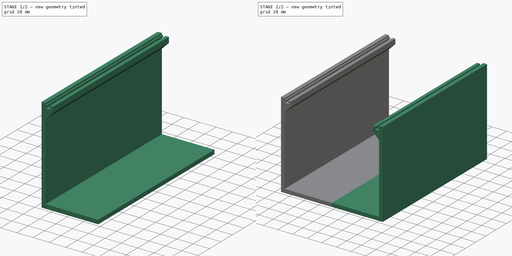
[diagram: build sequence overview — one tinted view per stage of 2, left to right]
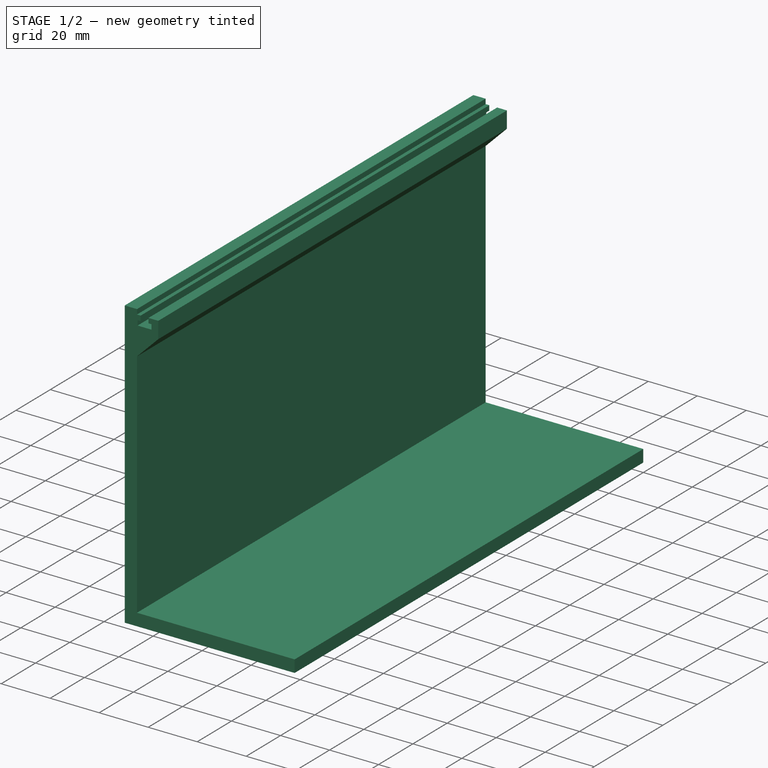
[diagram: stage 1 of 2 — iso view after this stage's code; geometry added in this stage tinted green]
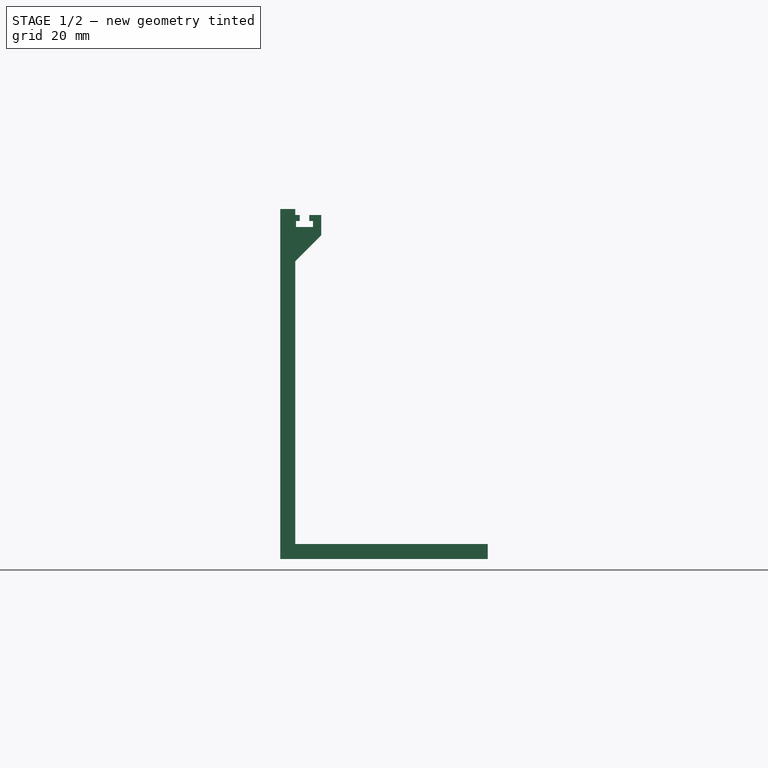
[diagram: stage 1 of 2 — front view after this stage's code; geometry added in this stage tinted green]
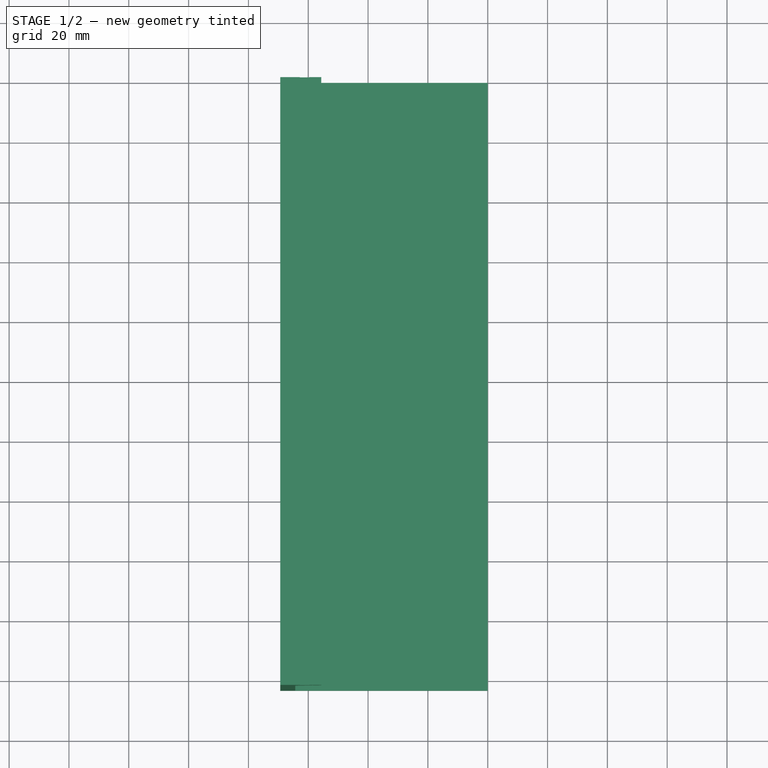
[diagram: stage 1 of 2 — top view after this stage's code; geometry added in this stage tinted green]
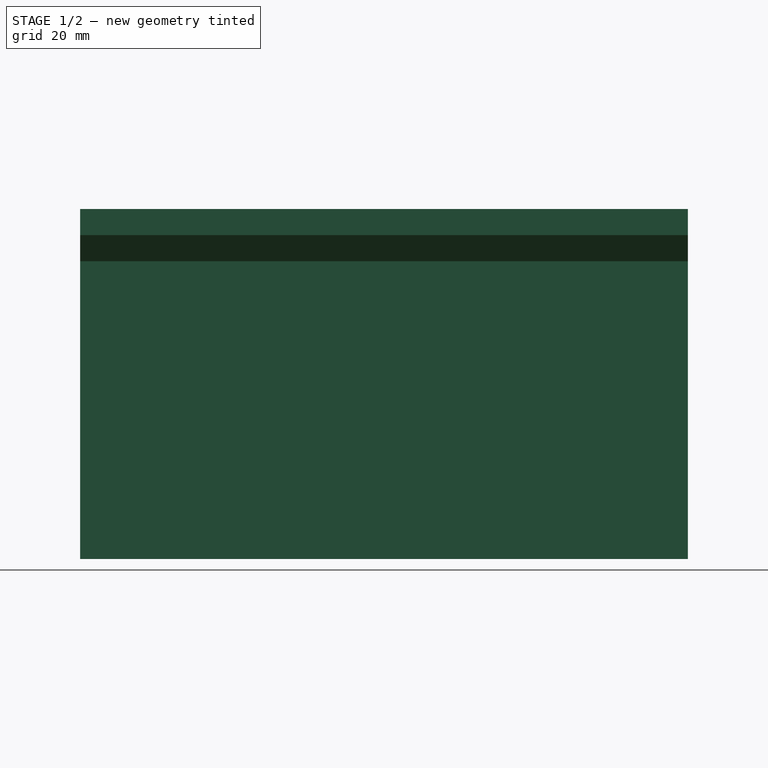
[diagram: stage 1 of 2 — right view after this stage's code; geometry added in this stage tinted green]
FCSTD DOCUMENT  (FreeCAD 0.21R33771 (Git))
Label: Eurorack
License: All rights reserved
LicenseURL: http://en.wikipedia.org/wiki/All_rights_reserved
objects: Sketcher::SketchObject×1, Spreadsheet::Sheet×1, PartDesign::Pad×1, PartDesign::Mirrored×1, PartDesign::Body×1
note: 5 computed .brp shape members not serialized (recipe doc carries the construction recipe); baked Part::Feature solids carry a one-line shape summary decoded from their .brp

FEATURE [Sketcher::SketchObject] Sketch
  FullyConstrained = true
  MapMode = 5
  Placement = pos=(0,0,0) rot=(1,0,0;1.5708rad)
  Support = -> [XZ_Plane]
  expr: Constraints[31] = Spreadsheet.wall_thickness
  expr: Constraints[32] = Spreadsheet.wall_thickness
  expr: Constraints[37] = Spreadsheet.wall_thickness
  expr: Constraints[38] = Spreadsheet.top_recess
  expr: Constraints[39] = Spreadsheet.screw_diameter + 2 * Spreadsheet.tolerance
  expr: Constraints[40] = Spreadsheet.nut_width + 2 * Spreadsheet.tolerance
  expr: Constraints[41] = Spreadsheet.nut_height + 2 * Spreadsheet.tolerance
  expr: Constraints[42] = Spreadsheet.screw_length
  expr: Constraints[48] = Spreadsheet.hole_y + Spreadsheet.tolerance
  expr: Constraints[49] = Spreadsheet.module_max_depth
  expr: Constraints[50] = Spreadsheet.lip
  expr: Constraints[51] = Spreadsheet.module_height / 2 + Spreadsheet.tolerance
  sketch-geometry (21):
    g0: LineSegment StartX=-69.35 StartY=0 StartZ=0 EndX=-69.35 EndY=117 EndZ=0
    g1: LineSegment StartX=-69.35 StartY=117 StartZ=0 EndX=-64.35 EndY=117 EndZ=0
    g2: LineSegment StartX=-64.35 StartY=117 StartZ=0 EndX=-64.35 EndY=115 EndZ=0
    g3: LineSegment StartX=-64.35 StartY=115 StartZ=0 EndX=-62.85 EndY=115 EndZ=0
    g4: LineSegment StartX=-62.85 StartY=115 StartZ=0 EndX=-62.85 EndY=113 EndZ=0
    g5: LineSegment StartX=-62.85 StartY=113 StartZ=0 EndX=-64.1 EndY=113 EndZ=0
    g6: LineSegment StartX=-64.1 StartY=113 StartZ=0 EndX=-64.1 EndY=111 EndZ=0
    g7: LineSegment StartX=-64.1 StartY=111 StartZ=0 EndX=-58.4 EndY=111 EndZ=0
    g8: LineSegment StartX=-58.4 StartY=111 StartZ=0 EndX=-58.4 EndY=113 EndZ=0
    g9: LineSegment StartX=-58.4 StartY=113 StartZ=0 EndX=-59.65 EndY=113 EndZ=0
    g10: LineSegment StartX=-59.65 StartY=113 StartZ=0 EndX=-59.65 EndY=115 EndZ=0
    g11: LineSegment StartX=-59.65 StartY=115 StartZ=0 EndX=-55.65 EndY=115 EndZ=0
    g12: LineSegment StartX=-64.35 StartY=5 StartZ=0 EndX=0 EndY=5 EndZ=0
    g13: LineSegment StartX=0 StartY=5 StartZ=0 EndX=0 EndY=0 EndZ=0
    g14: LineSegment StartX=0 StartY=0 StartZ=0 EndX=-69.35 EndY=0 EndZ=0
    g15: LineSegment StartX=-55.65 StartY=115 StartZ=0 EndX=-55.65 EndY=108.25 EndZ=0
    g16: LineSegment StartX=-55.65 StartY=108.25 StartZ=0 EndX=-64.35 EndY=99.55 EndZ=0
    g17: LineSegment StartX=-64.35 StartY=99.55 StartZ=0 EndX=-64.35 EndY=5 EndZ=0
    g18: LineSegment StartX=-62.85 StartY=115 StartZ=0 EndX=-61.25 EndY=115 EndZ=0
    g19: LineSegment StartX=-59.65 StartY=115 StartZ=0 EndX=-61.25 EndY=115 EndZ=0
    g20: LineSegment StartX=-58.4 StartY=111 StartZ=0 EndX=-55.65 EndY=108.25 EndZ=0
  constraints (60):
    c: Horizontal(g1)
    c: Coincident(g2,g1)
    c: Vertical(g2)
    c: Coincident(g3,g2)
    c: Horizontal(g3)
    c: Coincident(g4,g3)
    c: Vertical(g4)
    c: Coincident(g5,g4)
    c: Horizontal(g5)
    c: Vertical(g6)
    c: Coincident(g7,g6)
    c: Horizontal(g7)
    c: Coincident(g8,g7)
    c: Vertical(g8)
    c: Coincident(g9,g8)
    c: Horizontal(g9)
    c: Coincident(g10,g9)
    c: Vertical(g10)
    c: Coincident(g11,g10)
    c: Horizontal(g11)
    c: Horizontal(g12)
    c: Coincident(g13,g12)
    c: Coincident(g14,g13)
    c: Coincident(g14,g0)
    c: Coincident(g15,g11)
    c: Vertical(g15)
    c: Coincident(g16,g15)
    c: Coincident(g17,g16)
    c: Coincident(g17,g12)
    c: Vertical(g17)
    c: Vertical(g13)
    c: DistanceY(g13,g13) = 5
    c: DistanceX(g0,g12) = 5
    c: Angle(g16) = -2.35619
    c: Equal(g5,g9)
    c: Equal(g6,g8)
    c: Equal(g4,g10)
    c: DistanceX(g1,g1) = 5
    c: DistanceY(g2,g2) = 2
    c: DistanceX(g3,g10) = 3.2
    c: DistanceX(g7,g7) = 5.7
    c: DistanceY(g6,g6) = 2
    c: DistanceY(g6,g3) = 4
    c: Coincident(g18,g3)
    c: Horizontal(g18)
    c: Coincident(g19,g10)
    c: Coincident(g19,g18)
    c: Equal(g19,g18)
    c: DistanceX(g2,g18) = 3.1
    c: DistanceY(g12,g11) = 110
    c: DistanceX(g11,g11) = 4
    c: DistanceX(g12,g12) = 64.35
    c: Vertical(g0)
    c: Coincident(g1,g0)
    c: PointOnObject(g0,g-1)
    c: Coincident(g5,g6)
    c: Coincident(g13,g-1)
    c: Coincident(g20,g7)
    c: Coincident(g20,g15)
    c: Angle(g20) = -0.785398
FEATURE [Spreadsheet::Sheet] Spreadsheet
  cells = A1='Wall Thickness; B1(wall_thickness)=5; A2='Top Recess; B2(top_recess)=2; A3='Screw Diameter; B3(screw_diameter)=3; A4='Nut width; B4(nut_width)=5.5; A5='Nut height; B5(nut_height)=1.8; A6='Tolerance; B6(tolerance)=0.1; A7='Screw lenght; B7(screw_length)=4; A8='Hole Y; B8(hole_y)=3; A9='Module max depth; B9(module_max_depth)=110; A10='Lip; B10(lip)=4; A11='Module height; B11(module_height)=128.5; A12='HP; B12(hp)=5.08; A13='Case Width (HP); B13(case_width_hp)=40; A14='Case Width; B14(case_width)==case_width_hp * hp
FEATURE [PartDesign::Pad] Pad  label="Half Case"
  Direction = (0,-1,-2e-16)
  Length = 203.2
  Length2 = 10
  Placement = pos=(0,0,0) rot=(1,0,0;1.5708rad)
  Profile = -> Sketch
  ReferenceAxis = -> Sketch [N_Axis]
  Type = 0
  expr: Length = Spreadsheet.case_width
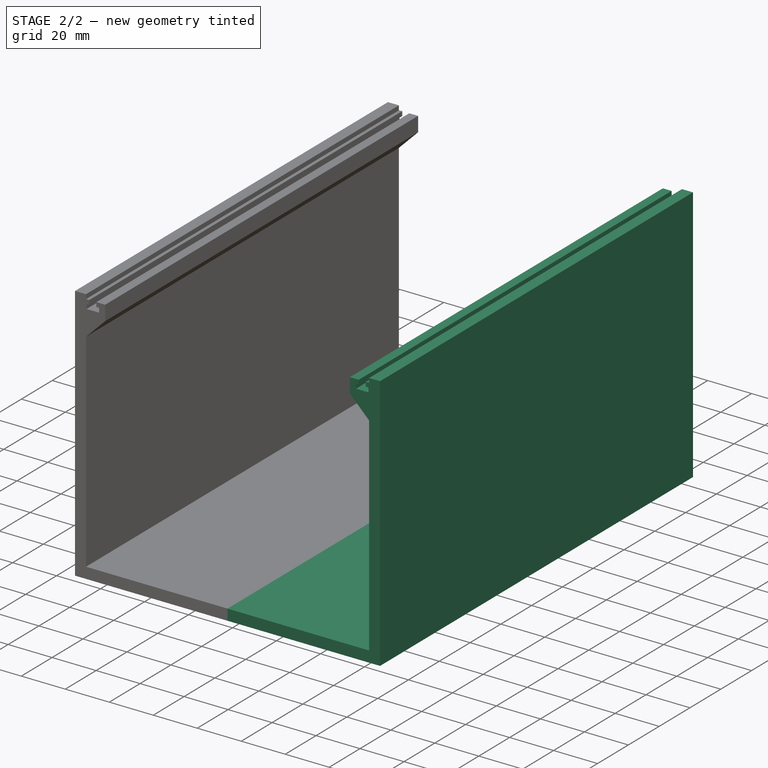
[diagram: stage 2 of 2 — iso view after this stage's code; geometry added in this stage tinted green]
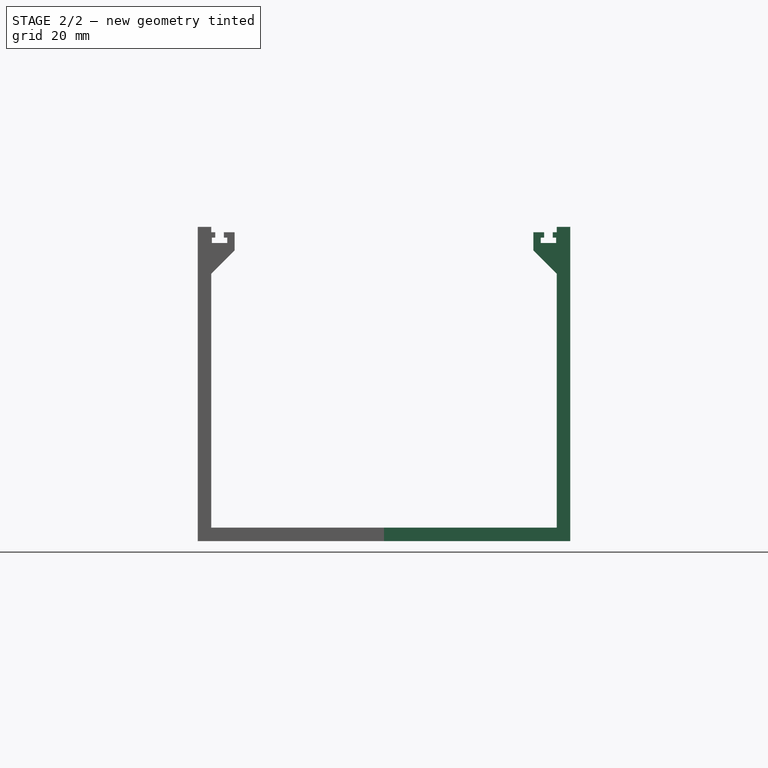
[diagram: stage 2 of 2 — front view after this stage's code; geometry added in this stage tinted green]
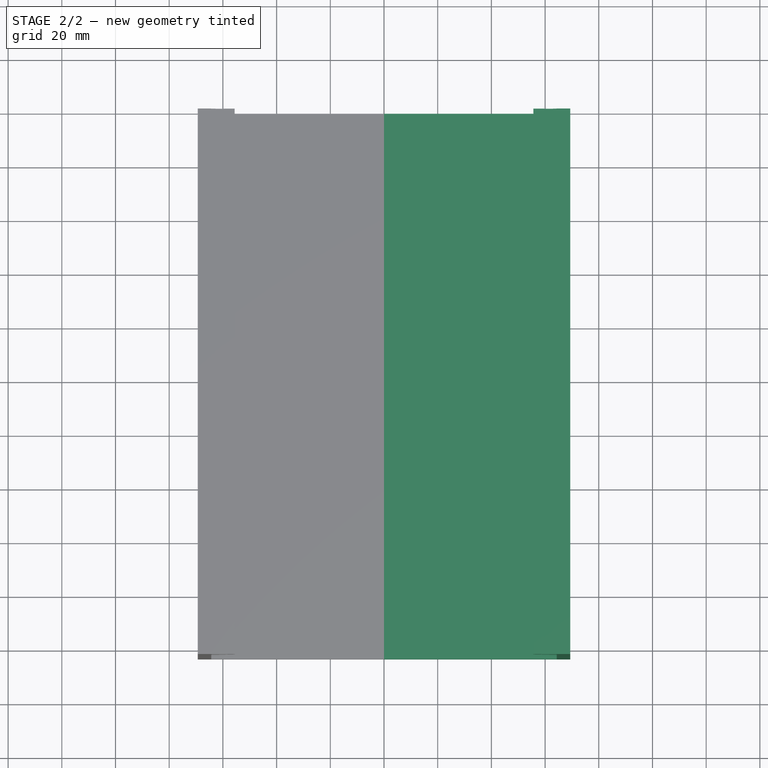
[diagram: stage 2 of 2 — top view after this stage's code; geometry added in this stage tinted green]
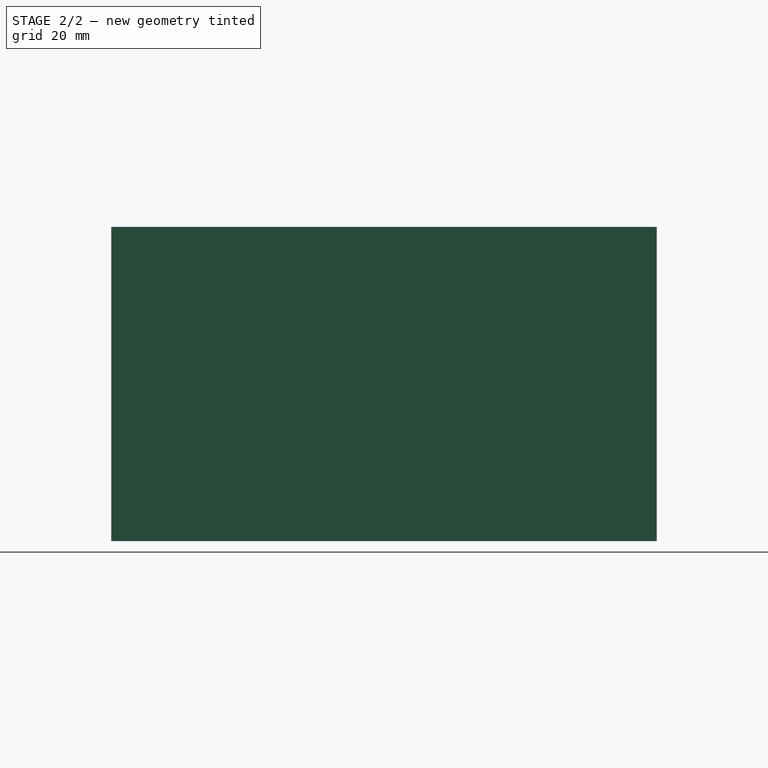
[diagram: stage 2 of 2 — right view after this stage's code; geometry added in this stage tinted green]
FEATURE [PartDesign::Mirrored] Mirrored
  BaseFeature = -> Pad
  MirrorPlane = -> Sketch [V_Axis]
  Originals = -> [Pad]
  Placement = pos=(0,0,0) rot=(1,0,0;1.5708rad)
FEATURE [PartDesign::Body] Body
  Group = -> [Sketch,Pad,Mirrored]
  Origin = -> Origin
  Tip = -> Mirrored
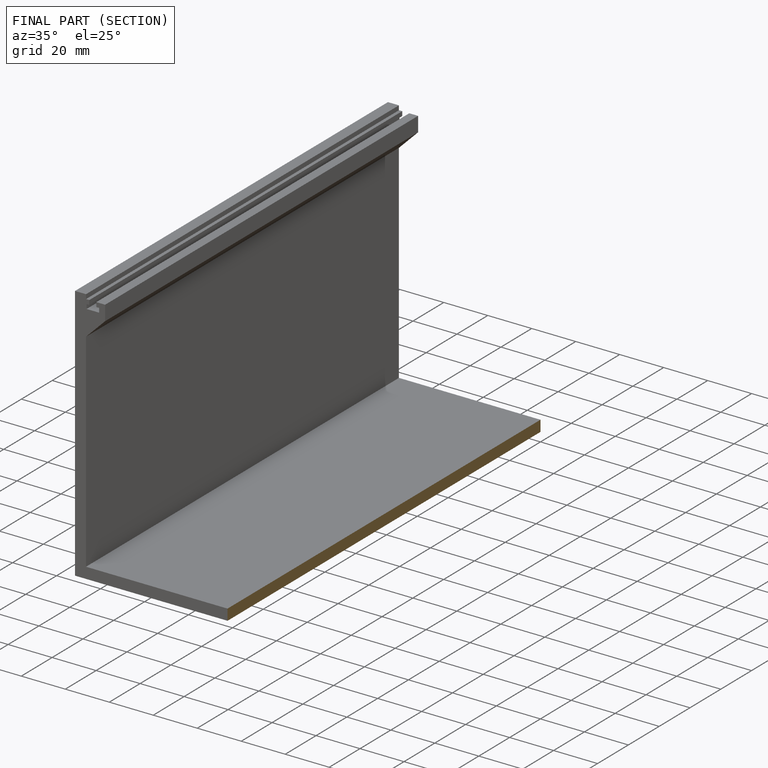
[diagram: finished part — half-section view (interior)]
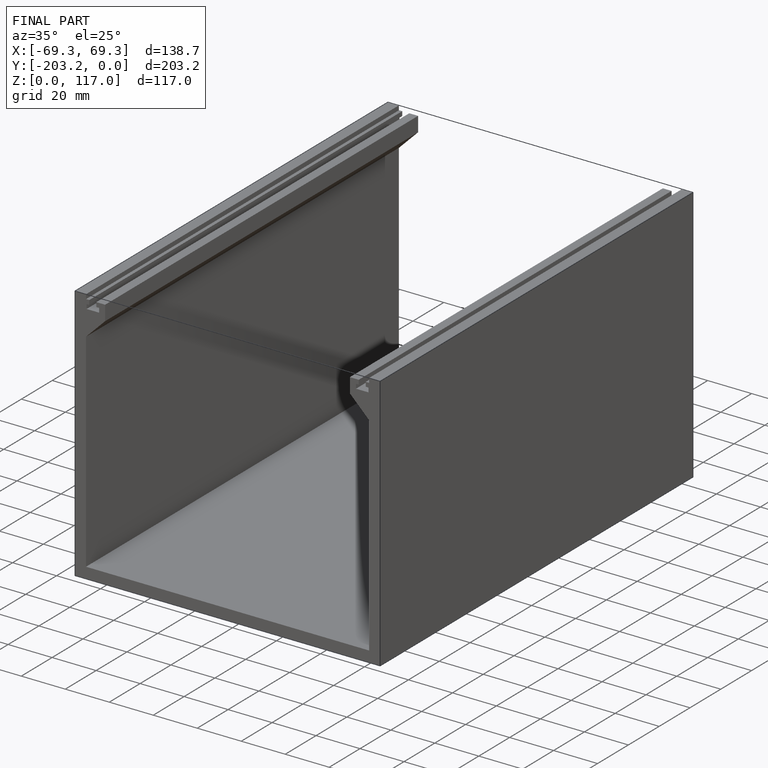
[diagram: finished part — iso view with bounding-box wireframe]
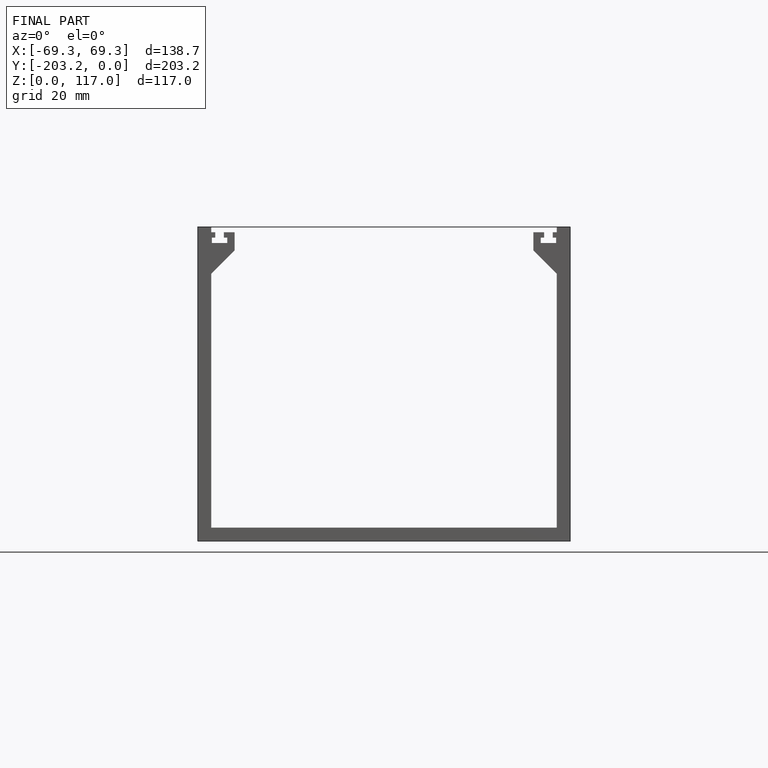
[diagram: finished part — front view with bounding-box wireframe]
